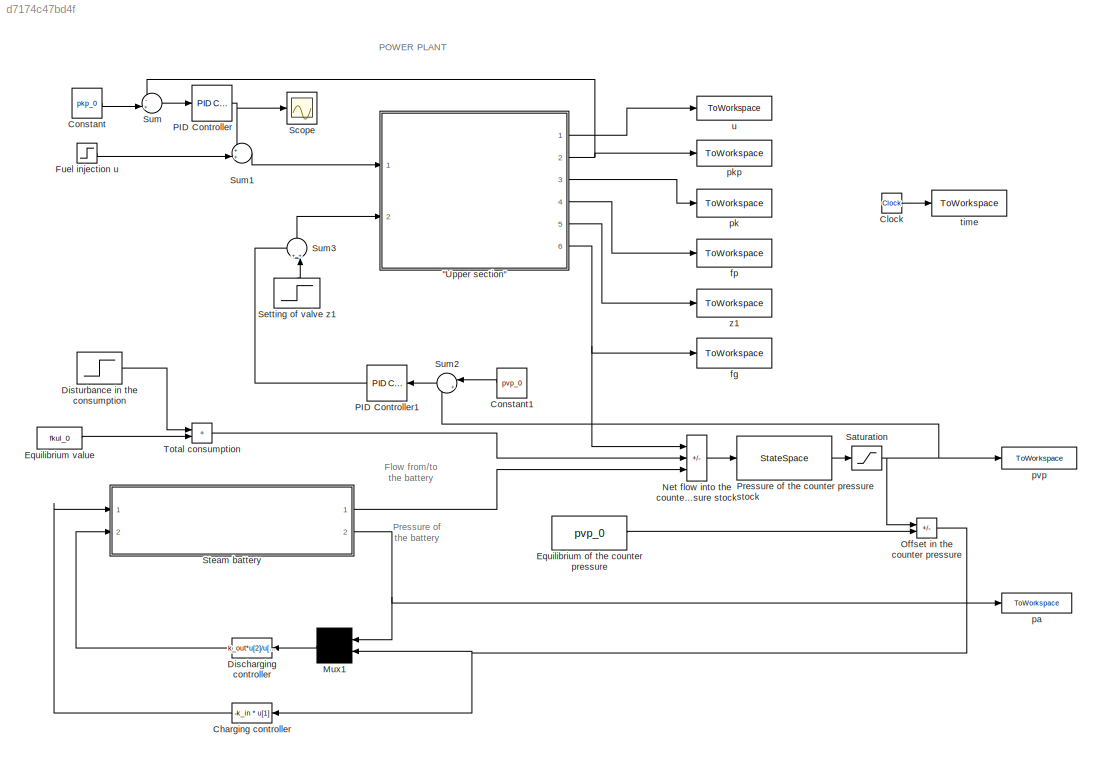
MODEL slx_d7174c47bd4f
KIND model
CONFIG AbsTol = 1e-3
CONFIG EnableMultiTasking = off
CONFIG FixedStep = auto
CONFIG MaxStep = 1
CONFIG MinStep = auto
CONFIG RelTol = 1e-3
CONFIG SampleTimeConstraint = Unconstrained
CONFIG SolverName = ode15s
CONFIG StartTime = 0.0
CONFIG StopTime = 1000.0
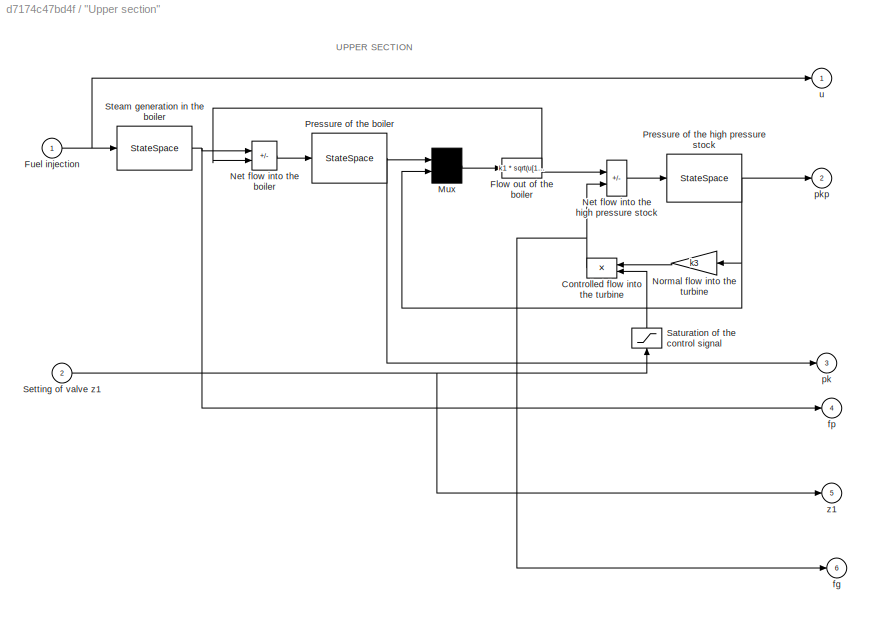
BLOCK [SubSystem] "Upper section"
  Ports = [2, 6]
  RequestExecContextInheritance = off
BLOCK [Product] "Upper section"/Controlled flow into the turbine
  InputSameDT = on
  OutDataTypeStr = Inherit: Same as first input
  Ports = [2, 1]
  RndMeth = Zero
  SaturateOnIntegerOverflow = on
BLOCK [Fcn] "Upper section"/Flow out of the boiler
  Expr = k1 * sqrt(u[1]*u[1]-u[2]*u[2])
BLOCK [Inport] "Upper section"/Fuel injection
BLOCK [Mux] "Upper section"/Mux
  Inputs = 2
  Ports = [2, 1]
BLOCK [Sum] "Upper section"/Net flow into the boiler
  IconShape = rectangular
  InputSameDT = on
  Inputs = +-
  OutDataTypeStr = Inherit: Same as first input
  Ports = [2, 1]
  SaturateOnIntegerOverflow = on
BLOCK [Sum] "Upper section"/Net flow into the high pressure stock
  IconShape = rectangular
  InputSameDT = on
  Inputs = +-
  OutDataTypeStr = Inherit: Same as first input
  Ports = [2, 1]
  SaturateOnIntegerOverflow = on
BLOCK [Gain] "Upper section"/Normal flow into the turbine
  Gain = k3
  OutDataTypeStr = Inherit: Same as input
  ParamDataTypeStr = Inherit: Same as input
  SaturateOnIntegerOverflow = on
BLOCK [StateSpace] "Upper section"/Pressure of the boiler
  A = 0
  B = 1/Ts
  D = 0
  InitialCondition = pk_0
  Ports = [1, 1]
BLOCK [StateSpace] "Upper section"/Pressure of the high pressure stock
  A = 0
  B = k2
  D = 0
  InitialCondition = pkp_0
  Ports = [1, 1]
BLOCK [Saturate] "Upper section"/Saturation of the control signal
  LowerLimit = 0.8
  NameLocation = right
  UpperLimit = 1.2
BLOCK [Inport] "Upper section"/Setting of valve z1
  Port = 2
BLOCK [StateSpace] "Upper section"/Steam generation in the boiler
  A = -1/T1
  B = k0 / T1
  D = 0
  InitialCondition = fp_0
  Ports = [1, 1]
BLOCK [Outport] "Upper section"/fg
  Port = 6
  VectorParamsAs1DForOutWhenUnconnected = off
BLOCK [Outport] "Upper section"/fp
  Port = 4
  VectorParamsAs1DForOutWhenUnconnected = off
BLOCK [Outport] "Upper section"/pk
  Port = 3
  VectorParamsAs1DForOutWhenUnconnected = off
BLOCK [Outport] "Upper section"/pkp
  Port = 2
  VectorParamsAs1DForOutWhenUnconnected = off
BLOCK [Outport] "Upper section"/u
  VectorParamsAs1DForOutWhenUnconnected = off
BLOCK [Outport] "Upper section"/z1
  Port = 5
  VectorParamsAs1DForOutWhenUnconnected = off
BLOCK [Fcn] Charging controller
  Expr = -k_in * u[1]
BLOCK [Clock] Clock
BLOCK [Constant] Constant
  Value = pkp_0
BLOCK [Constant] Constant1
  Value = pvp_0
BLOCK [Fcn] Discharging controller
  Expr = k_out*u[2]/u[1]
BLOCK [Step] Disturbance in the consumption
  After = 2
  SampleTime = 0
  Time = 200
BLOCK [Constant] Equilibrium of the counter pressure
  Value = pvp_0
BLOCK [Constant] Equilibrium value
  Value = fkul_0
BLOCK [Step] Fuel injection u
  After = 35.7
  Before = 35.7
  SampleTime = 0
  Time = 200
BLOCK [Mux] Mux1
  Inputs = 2
  Ports = [2, 1]
BLOCK [Sum] Net flow into the counter pressure stock
  IconShape = rectangular
  InputSameDT = on
  Inputs = +--
  OutDataTypeStr = Inherit: Same as first input
  Ports = [3, 1]
  SaturateOnIntegerOverflow = on
BLOCK [Sum] Offset in the counter pressure
  IconShape = rectangular
  InputSameDT = on
  Inputs = -+
  OutDataTypeStr = Inherit: Same as first input
  Ports = [2, 1]
  SaturateOnIntegerOverflow = on
BLOCK [Reference] PID Controller  REF=slpidlib/PID Controller
  Ports = [1, 1]
  SourceBlock = slpidlib/PID Controller
  SourceProductBaseCode = SL
  SourceType = PID 1dof
BLOCK [Reference] PID Controller1  REF=slpidlib/PID Controller
  Ports = [1, 1]
  SourceBlock = slpidlib/PID Controller
  SourceProductBaseCode = SL
  SourceType = PID 1dof
BLOCK [StateSpace] Pressure of the counter pressure stock
  A = 0
  B = k4
  D = 0
  InitialCondition = pvp_0
  Ports = [1, 1]
BLOCK [Saturate] Saturation
  LowerLimit = 0
  UpperLimit = 100000
BLOCK [Scope] Scope
  Floating = off
  NumInputPorts = 1
  Ports = [1]
  ScopeSpecificationString = Simulink.scopes.TimeScopeBlockCfg('CurrentConfiguration', extmgr.ConfigurationSet(extmgr.Configuration('Core','General UI',true),extmgr.Configuration('Core','Source UI',true),extmgr.Configuration('Sources','WiredSimulink',true),extmgr.Configuration('Visuals','Time Domain',true,'SerializedDisplays',{struct('MinYLimReal','-30652909946040789569437478505065476718413036509097075563730526480828440362968...<+2670ch>
BLOCK [Step] Setting of valve z1
  Before = 1
  NameLocation = right
  SampleTime = 0
  Time = 200
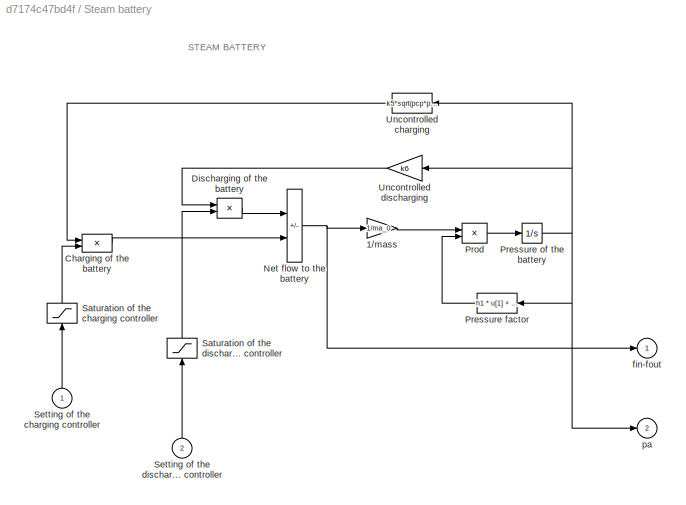
BLOCK [SubSystem] Steam battery
  Ports = [2, 2]
  RequestExecContextInheritance = off
BLOCK [Gain] Steam battery/1//mass
  Gain = 1/ma_0
  OutDataTypeStr = Inherit: Same as input
  ParamDataTypeStr = Inherit: Same as input
  SaturateOnIntegerOverflow = on
BLOCK [Product] Steam battery/Charging of the battery
  InputSameDT = on
  OutDataTypeStr = Inherit: Same as first input
  Ports = [2, 1]
  RndMeth = Zero
  SaturateOnIntegerOverflow = on
BLOCK [Product] Steam battery/Discharging of the battery
  InputSameDT = on
  OutDataTypeStr = Inherit: Same as first input
  Ports = [2, 1]
  RndMeth = Zero
  SaturateOnIntegerOverflow = on
BLOCK [Sum] Steam battery/Net flow to the battery
  IconShape = rectangular
  InputSameDT = on
  Inputs = -+
  OutDataTypeStr = Inherit: Same as first input
  Ports = [2, 1]
  SaturateOnIntegerOverflow = on
BLOCK [Fcn] Steam battery/Pressure factor
  Expr = h1 * u[1]  + h2
BLOCK [Integrator] Steam battery/Pressure of the battery
  InitialCondition = pa_0
  Ports = [1, 1]
BLOCK [Product] Steam battery/Prod
  InputSameDT = on
  OutDataTypeStr = Inherit: Same as first input
  Ports = [2, 1]
  RndMeth = Zero
  SaturateOnIntegerOverflow = on
BLOCK [Saturate] Steam battery/Saturation of the charging controller
  LowerLimit = 0
  NameLocation = right
  UpperLimit = 10000
BLOCK [Saturate] Steam battery/Saturation of the discharging controller
  LowerLimit = 0
  NameLocation = right
  UpperLimit = 10000
BLOCK [Inport] Steam battery/Setting of the charging controller
  NameLocation = right
BLOCK [Inport] Steam battery/Setting of the discharging controller
  NameLocation = right
  Port = 2
BLOCK [Fcn] Steam battery/Uncontrolled charging
  Expr = k5*sqrt(pcp*pcp - u[1]*u[1])
BLOCK [Gain] Steam battery/Uncontrolled discharging
  Gain = k6
  OutDataTypeStr = Inherit: Same as input
  ParamDataTypeStr = Inherit: Same as input
  SaturateOnIntegerOverflow = on
BLOCK [Outport] Steam battery/fin-fout
  VectorParamsAs1DForOutWhenUnconnected = off
BLOCK [Outport] Steam battery/pa
  Port = 2
  VectorParamsAs1DForOutWhenUnconnected = off
BLOCK [Sum] Sum
  Inputs = -+|
  Ports = [2, 1]
BLOCK [Sum] Sum1
  Inputs = ++|
  Ports = [2, 1]
BLOCK [Sum] Sum2
  Inputs = |+-
  Ports = [2, 1]
BLOCK [Sum] Sum3
  Inputs = ++|
  NameLocation = left
  Ports = [2, 1]
BLOCK [Sum] Total consumption
  IconShape = rectangular
  InputSameDT = on
  OutDataTypeStr = Inherit: Same as first input
  Ports = [2, 1]
  SaturateOnIntegerOverflow = on
BLOCK [ToWorkspace] fg
  MaxDataPoints = 50000
  Ports = [1]
  VariableName = fg
BLOCK [ToWorkspace] fp
  MaxDataPoints = 50000
  Ports = [1]
  VariableName = fp
BLOCK [ToWorkspace] pa
  MaxDataPoints = 100000
  Ports = [1]
  VariableName = pa
BLOCK [ToWorkspace] pk
  MaxDataPoints = 50000
  Ports = [1]
  VariableName = pk
BLOCK [ToWorkspace] pkp
  MaxDataPoints = 100000
  Ports = [1]
  VariableName = pkp
BLOCK [ToWorkspace] pvp
  MaxDataPoints = 50000
  Ports = [1]
  VariableName = pvp
BLOCK [ToWorkspace] time
  MaxDataPoints = 100000
  Ports = [1]
  VariableName = time
BLOCK [ToWorkspace] u
  MaxDataPoints = 100000
  Ports = [1]
  VariableName = u
BLOCK [ToWorkspace] z1
  MaxDataPoints = 50000
  Ports = [1]
  VariableName = z1
ANNOTATION (root): POWER PLANT
ANNOTATION (root): Flow from/to the battery
ANNOTATION (root): Pressure of the battery
ANNOTATION "Upper section": UPPER SECTION
ANNOTATION Steam battery: STEAM BATTERY
NET "Upper section"/Controlled flow into the turbine:1 -> "Upper section"/Net flow into the high pressure stock:2, "Upper section"/fg:1
NET "Upper section"/Flow out of the boiler:1 -> "Upper section"/Net flow into the boiler:2, "Upper section"/Net flow into the high pressure stock:1
NET "Upper section"/Fuel injection:1 -> "Upper section"/Steam generation in the boiler:1, "Upper section"/u:1
LINE "Upper section"/Mux:1 -> "Upper section"/Flow out of the boiler:1
LINE "Upper section"/Net flow into the boiler:1 -> "Upper section"/Pressure of the boiler:1
LINE "Upper section"/Net flow into the high pressure stock:1 -> "Upper section"/Pressure of the high pressure stock:1
LINE "Upper section"/Normal flow into the turbine:1 -> "Upper section"/Controlled flow into the turbine:1
NET "Upper section"/Pressure of the boiler:1 -> "Upper section"/Mux:1, "Upper section"/pk:1
NET "Upper section"/Pressure of the high pressure stock:1 -> "Upper section"/Mux:2, "Upper section"/Normal flow into the turbine:1, "Upper section"/pkp:1
LINE "Upper section"/Saturation of the control signal:1 -> "Upper section"/Controlled flow into the turbine:2
NET "Upper section"/Setting of valve z1:1 -> "Upper section"/Saturation of the control signal:1, "Upper section"/z1:1
NET "Upper section"/Steam generation in the boiler:1 -> "Upper section"/Net flow into the boiler:1, "Upper section"/fp:1
LINE "Upper section":1 -> u:1
NET "Upper section":2 -> Sum:1, pkp:1
LINE "Upper section":3 -> pk:1
LINE "Upper section":4 -> fp:1
LINE "Upper section":5 -> z1:1
NET "Upper section":6 -> Net flow into the counter pressure stock:1, fg:1
LINE Charging controller:1 -> Steam battery:1
LINE Clock:1 -> time:1
LINE Constant1:1 -> Sum2:1
LINE Constant:1 -> Sum:2
LINE Discharging controller:1 -> Steam battery:2
LINE Disturbance in the consumption:1 -> Total consumption:1
LINE Equilibrium of the counter pressure:1 -> Offset in the counter pressure:2
LINE Equilibrium value:1 -> Total consumption:2
LINE Fuel injection u:1 -> Sum1:2
LINE Mux1:1 -> Discharging controller:1
LINE Net flow into the counter pressure stock:1 -> Pressure of the counter pressure stock:1
NET Offset in the counter pressure:1 -> Charging controller:1, Mux1:2
LINE PID Controller1:1 -> Sum3:1
NET PID Controller:1 -> Scope:1, Sum1:1
LINE Pressure of the counter pressure stock:1 -> Saturation:1
NET Saturation:1 -> Offset in the counter pressure:1, Sum2:2, pvp:1
LINE Setting of valve z1:1 -> Sum3:2
LINE Steam battery/1//mass:1 -> Steam battery/Prod:1
LINE Steam battery/Charging of the battery:1 -> Steam battery/Net flow to the battery:2
LINE Steam battery/Discharging of the battery:1 -> Steam battery/Net flow to the battery:1
NET Steam battery/Net flow to the battery:1 -> Steam battery/1//mass:1, Steam battery/fin-fout:1
LINE Steam battery/Pressure factor:1 -> Steam battery/Prod:2
NET Steam battery/Pressure of the battery:1 -> Steam battery/Pressure factor:1, Steam battery/Uncontrolled charging:1, Steam battery/Uncontrolled discharging:1, Steam battery/pa:1
LINE Steam battery/Prod:1 -> Steam battery/Pressure of the battery:1
LINE Steam battery/Saturation of the charging controller:1 -> Steam battery/Charging of the battery:2
LINE Steam battery/Saturation of the discharging controller:1 -> Steam battery/Discharging of the battery:2
LINE Steam battery/Setting of the charging controller:1 -> Steam battery/Saturation of the charging controller:1
LINE Steam battery/Setting of the discharging controller:1 -> Steam battery/Saturation of the discharging controller:1
LINE Steam battery/Uncontrolled charging:1 -> Steam battery/Charging of the battery:1
LINE Steam battery/Uncontrolled discharging:1 -> Steam battery/Discharging of the battery:1
LINE Steam battery:1 -> Net flow into the counter pressure stock:3
NET Steam battery:2 -> Mux1:1, pa:1
LINE Sum1:1 -> "Upper section":1
LINE Sum2:1 -> PID Controller1:1
LINE Sum3:1 -> "Upper section":2
LINE Sum:1 -> PID Controller:1
LINE Total consumption:1 -> Net flow into the counter pressure stock:2
note: NET lines group one-source signal fan-out (src -> all destinations, sorted); 1:1 wires keep LINE
